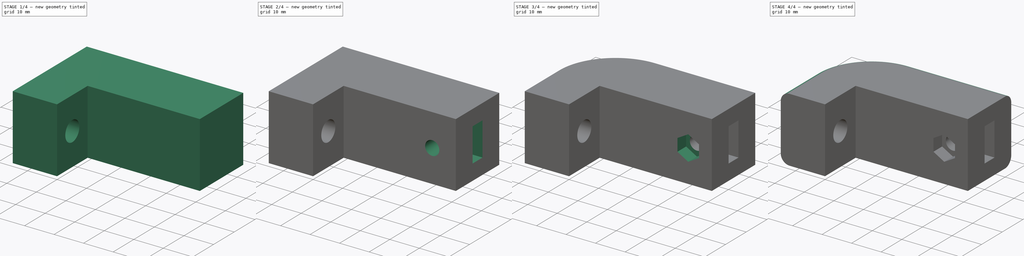
[diagram: build sequence overview — one tinted view per stage of 4, left to right]
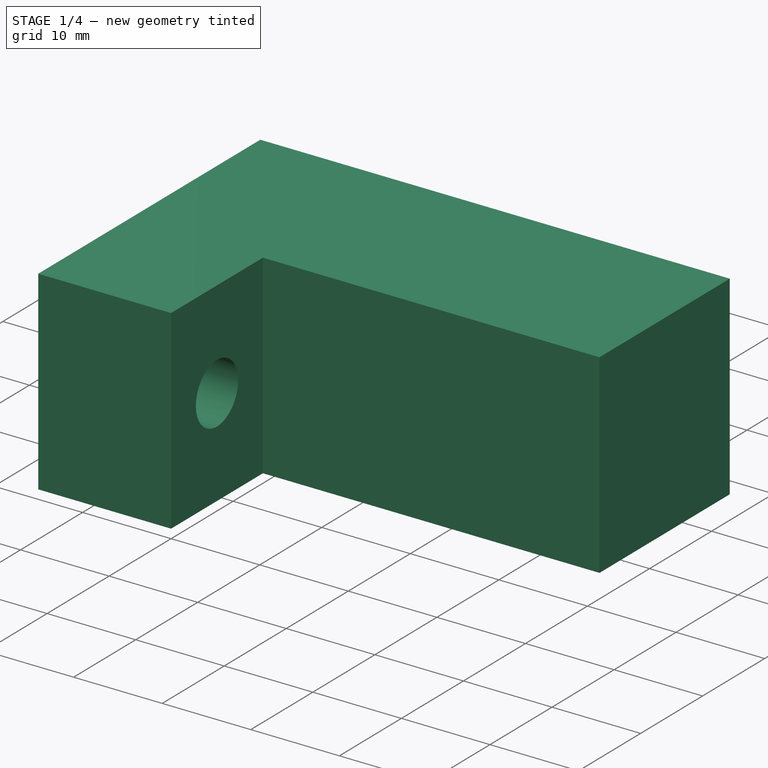
[diagram: stage 1 of 4 — iso view after this stage's code; geometry added in this stage tinted green]
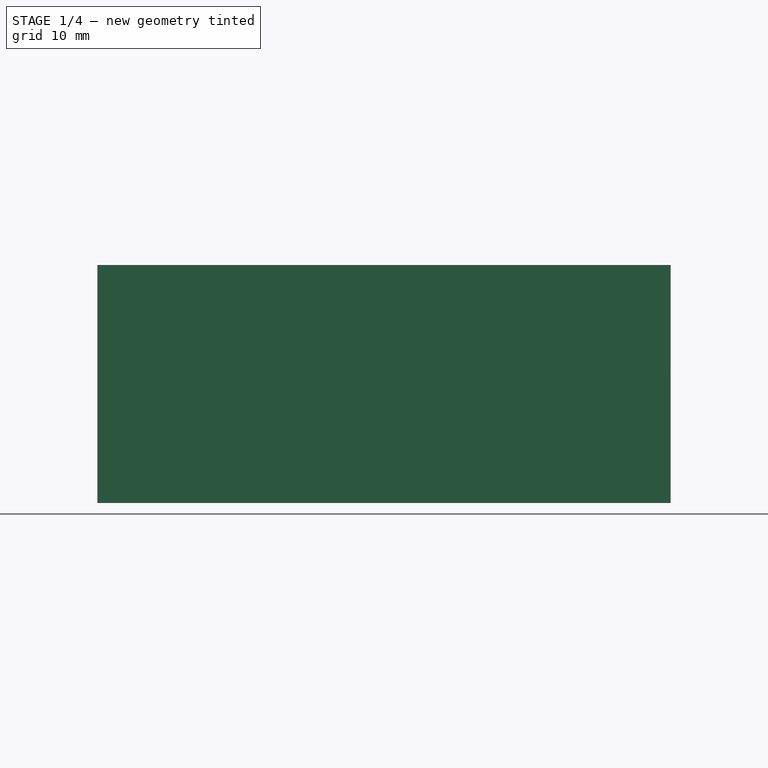
[diagram: stage 1 of 4 — front view after this stage's code; geometry added in this stage tinted green]
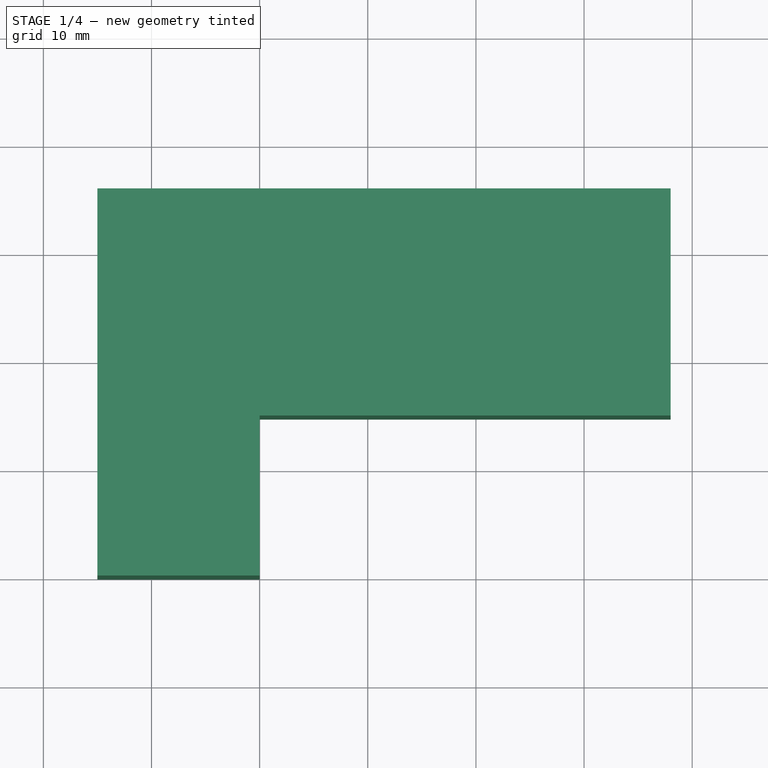
[diagram: stage 1 of 4 — top view after this stage's code; geometry added in this stage tinted green]
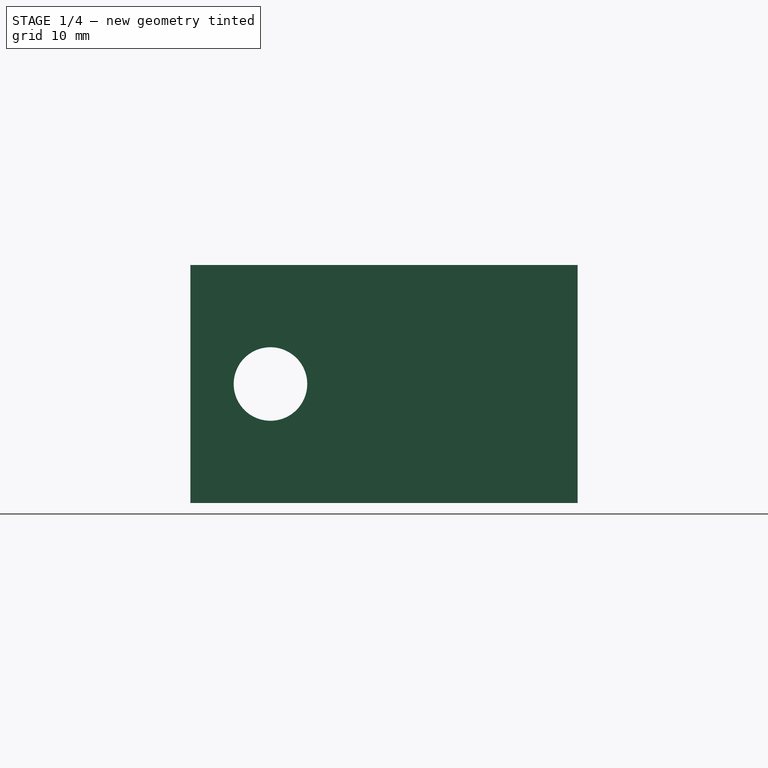
[diagram: stage 1 of 4 — right view after this stage's code; geometry added in this stage tinted green]
FCSTD DOCUMENT  (FreeCAD 1.0R39109 (Git))
Label: pulley_to_SH25
License: All rights reserved
LicenseURL: https://en.wikipedia.org/wiki/All_rights_reserved
objects: Sketcher::SketchObject×6, PartDesign::Pocket×5, PartDesign::Fillet×3, PartDesign::Pad×1, PartDesign::Body×1
note: 40 computed .brp shape members not serialized (recipe doc carries the construction recipe); baked Part::Feature solids carry a one-line shape summary decoded from their .brp

FEATURE [Sketcher::SketchObject] Sketch
  ArcFitTolerance = 1e-06
  AttachmentSupport = -> [XY_Plane]
  FullyConstrained = true
  MakeInternals = false
  MapMode = 5
  sketch-geometry (6):
    g0: LineSegment StartX=0 StartY=0 StartZ=0 EndX=0 EndY=14.8 EndZ=0
    g1: LineSegment StartX=0 StartY=14.8 StartZ=0 EndX=38 EndY=14.8 EndZ=0
    g2: LineSegment StartX=38 StartY=14.8 StartZ=0 EndX=38 EndY=35.8 EndZ=0
    g3: LineSegment StartX=38 StartY=35.8 StartZ=0 EndX=-15 EndY=35.8 EndZ=0
    g4: LineSegment StartX=-15 StartY=35.8 StartZ=0 EndX=-15 EndY=0 EndZ=0
    g5: LineSegment StartX=-15 StartY=0 StartZ=0 EndX=0 EndY=0 EndZ=0
  constraints (17):
    c: Coincident(g0,g-1)
    c: Vertical(g0)
    c: Coincident(g1,g0)
    c: Horizontal(g1)
    c: Coincident(g2,g1)
    c: Vertical(g2)
    c: Coincident(g3,g2)
    c: Horizontal(g3)
    c: Coincident(g4,g3)
    c: Vertical(g4)
    c: Coincident(g5,g4)
    c: Coincident(g5,g0)
    c: Horizontal(g5)
    c: DistanceY(g0,g0) = 14.8
    c: DistanceX(g1,g1) = 38
    c: DistanceY(g2,g2) = 21
    c: DistanceX(g5,g5) = 15
FEATURE [PartDesign::Pad] Pad
  Direction = (0,0,1)
  Length = 22
  Length2 = 10
  Profile = -> Sketch
  ReferenceAxis = -> Sketch [N_Axis]
  Refine = true
  Suppressed = false
  Type = 0
FEATURE [Sketcher::SketchObject] Sketch001
  ArcFitTolerance = 1e-06
  AttachmentSupport = -> [Pad]
  FullyConstrained = true
  MakeInternals = false
  MapMode = 5
  Placement = pos=(0,0,0) rot=(0.57735,0.57735,0.57735;2.0944rad)
  sketch-geometry (1):
    g0: Circle CenterX=7.4 CenterY=11 CenterZ=0 NormalX=0 NormalY=0 NormalZ=1 AngleXU=0 Radius=3.4
  constraints (3):
    c: DistanceY(g-1,g0) = 11
    c: DistanceX(g0) = 7.4
    c: Diameter(g0) = 6.8
FEATURE [PartDesign::Pocket] Pocket
  BaseFeature = -> Pad
  Direction = (-1,0,0)
  Length = 5
  Length2 = 5
  Profile = -> Sketch001
  ReferenceAxis = -> Sketch001 [N_Axis]
  Refine = true
  Suppressed = false
  Type = 1
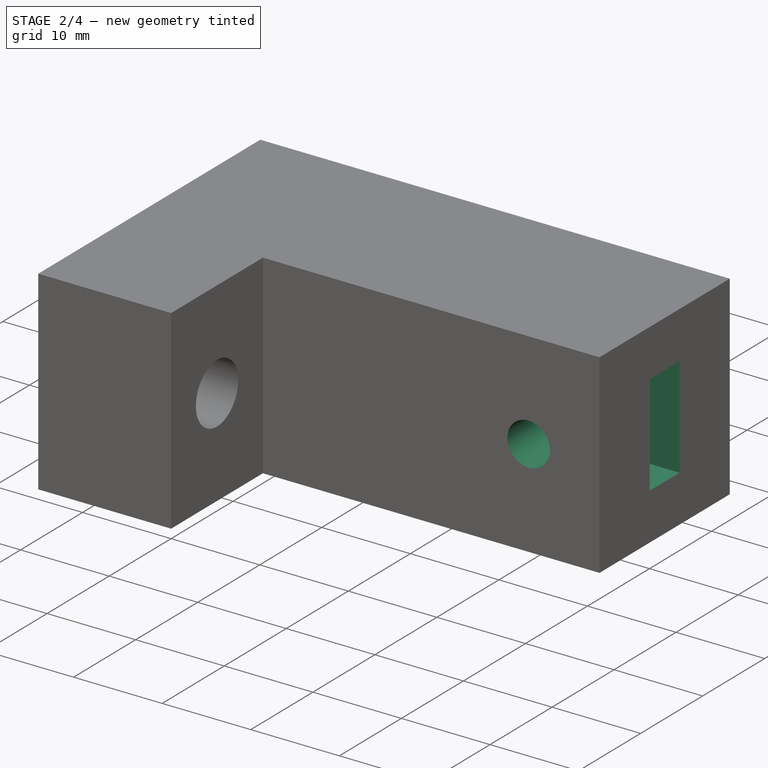
[diagram: stage 2 of 4 — iso view after this stage's code; geometry added in this stage tinted green]
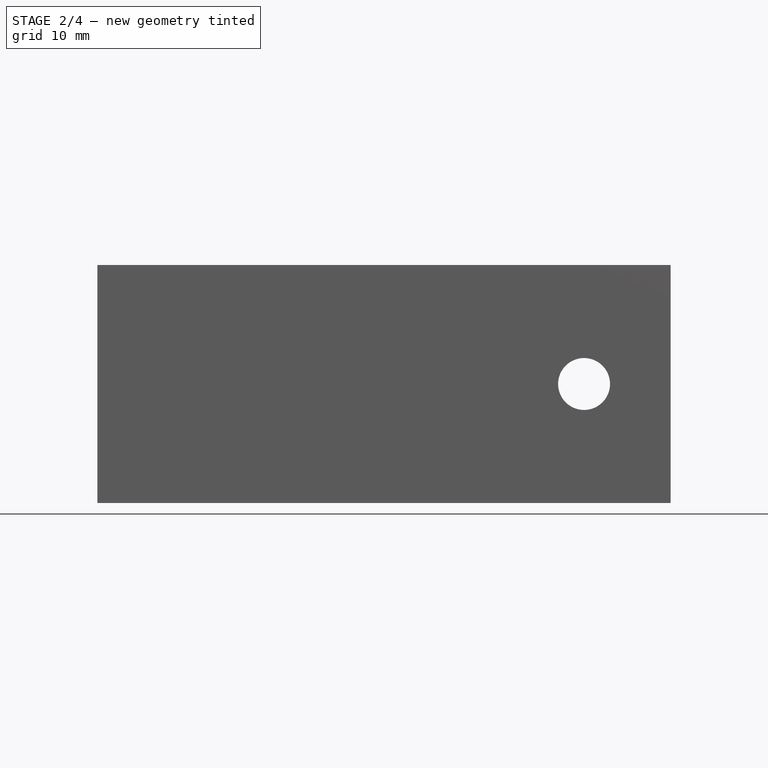
[diagram: stage 2 of 4 — front view after this stage's code; geometry added in this stage tinted green]
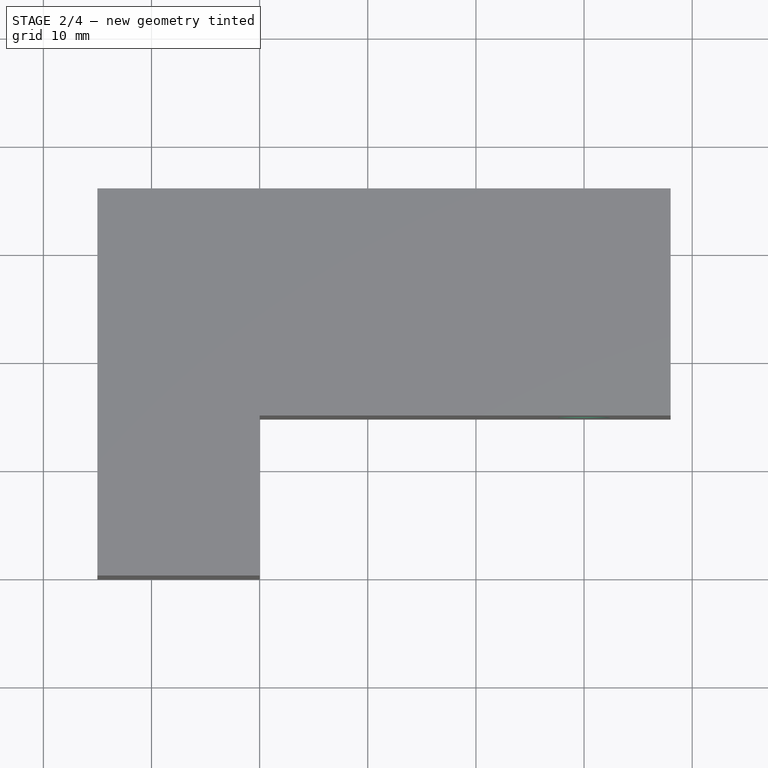
[diagram: stage 2 of 4 — top view after this stage's code; geometry added in this stage tinted green]
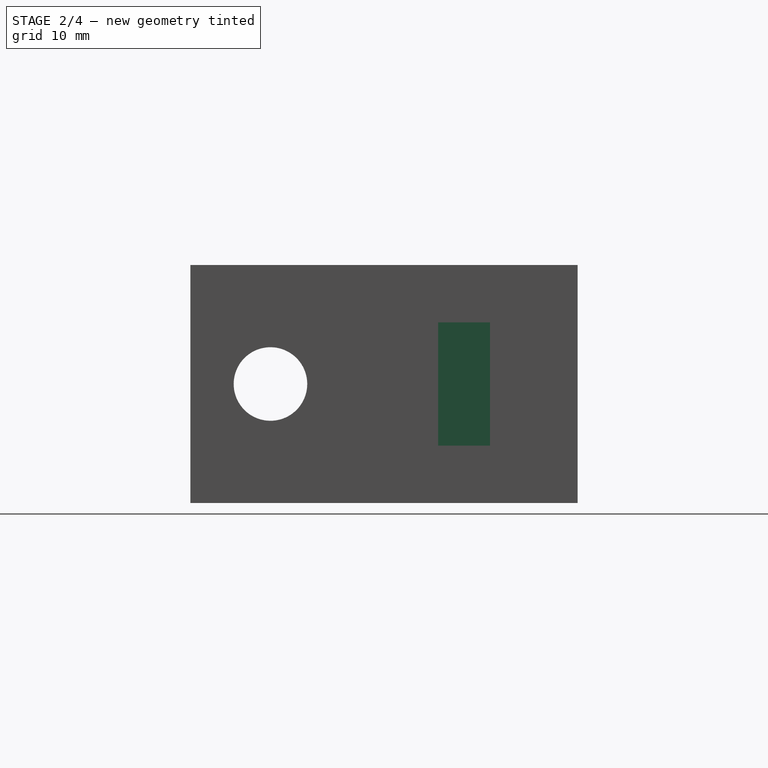
[diagram: stage 2 of 4 — right view after this stage's code; geometry added in this stage tinted green]
FEATURE [Sketcher::SketchObject] Sketch002
  ArcFitTolerance = 1e-06
  AttachmentSupport = -> [Pocket]
  FullyConstrained = true
  MakeInternals = false
  MapMode = 5
  Placement = pos=(38,0,0) rot=(0.57735,0.57735,0.57735;2.0944rad)
  sketch-geometry (12):
    g0: LineSegment StartX=22.9 StartY=16.7 StartZ=0 EndX=22.9 EndY=5.3 EndZ=0
    g1: LineSegment StartX=22.9 StartY=5.3 StartZ=0 EndX=27.7 EndY=5.3 EndZ=0
    g2: LineSegment StartX=27.7 StartY=5.3 StartZ=0 EndX=27.7 EndY=16.7 EndZ=0
    g3: LineSegment StartX=27.7 StartY=16.7 StartZ=0 EndX=22.9 EndY=16.7 EndZ=0
    g4: LineSegment [constr] StartX=22.9 StartY=16.7 StartZ=0 EndX=27.7 EndY=5.3 EndZ=0
    g5: LineSegment [constr] StartX=14.8 StartY=0 StartZ=0 EndX=35.8 EndY=0 EndZ=0
    g6: LineSegment [constr] StartX=35.8 StartY=0 StartZ=0 EndX=35.8 EndY=22 EndZ=0
    g7: LineSegment [constr] StartX=35.8 StartY=22 StartZ=0 EndX=14.8 EndY=22 EndZ=0
    g8: LineSegment [constr] StartX=14.8 StartY=22 StartZ=0 EndX=14.8 EndY=0 EndZ=0
    g9: LineSegment [constr] StartX=14.8 StartY=22 StartZ=0 EndX=35.8 EndY=0 EndZ=0
    g10: GeomPoint [constr] X=25.3 Y=11 Z=0
    g11: GeomPoint [constr] X=25.3 Y=11 Z=0
  constraints (29):
    c: Coincident(g0,g1)
    c: Coincident(g1,g2)
    c: Coincident(g2,g3)
    c: Coincident(g3,g0)
    c: Vertical(g0)
    c: Vertical(g2)
    c: Horizontal(g1)
    c: Horizontal(g3)
    c: Distance(g0,g2) = 4.8
    c: Distance(g1,g3) = 11.4
    c: Coincident(g4,g0)
    c: Coincident(g4,g1)
    c: Coincident(g5,g6)
    c: Coincident(g6,g7)
    c: Coincident(g7,g8)
    c: Coincident(g8,g5)
    c: Horizontal(g5)
    c: Horizontal(g7)
    c: Vertical(g6)
    c: Vertical(g8)
    c: Distance(g6,g8) = 21
    c: Distance(g5,g7) = 22
    c: PointOnObject(g5,g-1)
    c: DistanceX(g5) = 14.8
    c: Coincident(g9,g7)
    c: Coincident(g9,g5)
    c: Symmetric(g0,g2,g10)
    c: Symmetric(g5,g6,g11)
    c: Coincident(g10,g11)
FEATURE [PartDesign::Pocket] Pocket001
  BaseFeature = -> Pocket
  Direction = (-1,0,0)
  Length = 13.5
  Length2 = 5
  Profile = -> Sketch002
  ReferenceAxis = -> Sketch002 [N_Axis]
  Refine = true
  Suppressed = false
  Type = 0
FEATURE [Sketcher::SketchObject] Sketch003
  ArcFitTolerance = 1e-06
  AttachmentSupport = -> [Pocket001]
  FullyConstrained = true
  MakeInternals = false
  MapMode = 5
  Placement = pos=(0,35.8,0) rot=(0,0.707107,0.707107;3.14159rad)
  sketch-geometry (5):
    g0: Circle CenterX=-30 CenterY=11 CenterZ=0 NormalX=0 NormalY=0 NormalZ=1 AngleXU=0 Radius=2.4
    g1: LineSegment [constr] StartX=0 StartY=0 StartZ=0 EndX=0 EndY=22 EndZ=0
    g2: LineSegment [constr] StartX=0 StartY=22 StartZ=0 EndX=-38 EndY=22 EndZ=0
    g3: LineSegment [constr] StartX=-38 StartY=22 StartZ=0 EndX=-38 EndY=0 EndZ=0
    g4: LineSegment [constr] StartX=-38 StartY=0 StartZ=0 EndX=0 EndY=0 EndZ=0
  constraints (14):
    c: DistanceY(g0) = 11
    c: Coincident(g1,g2)
    c: Coincident(g2,g3)
    c: Coincident(g3,g4)
    c: Coincident(g4,g1)
    c: Vertical(g1)
    c: Vertical(g3)
    c: Horizontal(g2)
    c: Horizontal(g4)
    c: Distance(g1,g3) = 38
    c: Distance(g2,g4) = 22
    c: Coincident(g1,g-1)
    c: DistanceX(g2,g0) = 8
    c: Diameter(g0) = 4.8
FEATURE [PartDesign::Pocket] Pocket002
  BaseFeature = -> Pocket001
  Direction = (0,-1,2e-16)
  Length = 5
  Length2 = 5
  Profile = -> Sketch003
  ReferenceAxis = -> Sketch003 [N_Axis]
  Refine = true
  Suppressed = false
  Type = 1
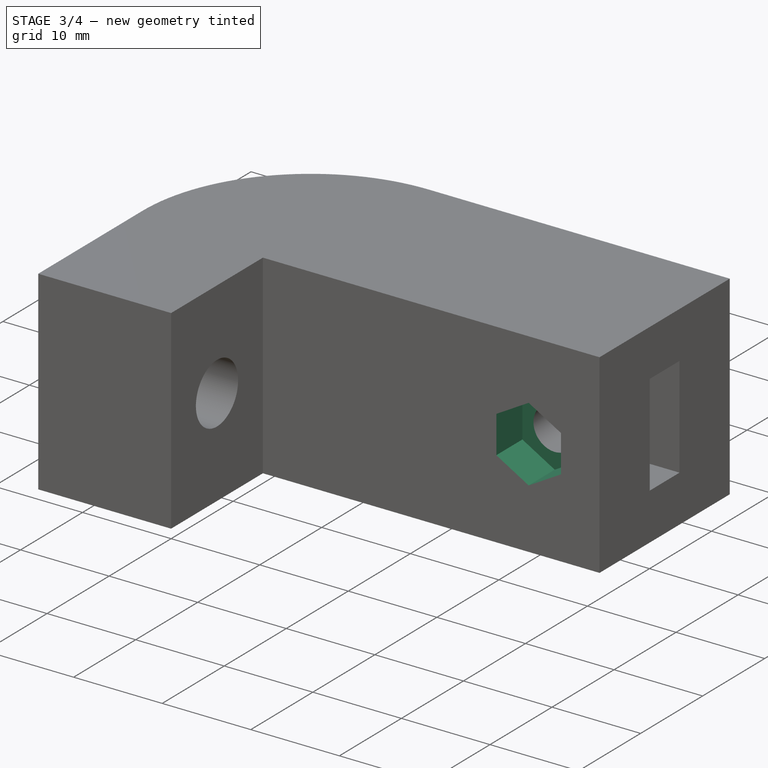
[diagram: stage 3 of 4 — iso view after this stage's code; geometry added in this stage tinted green]
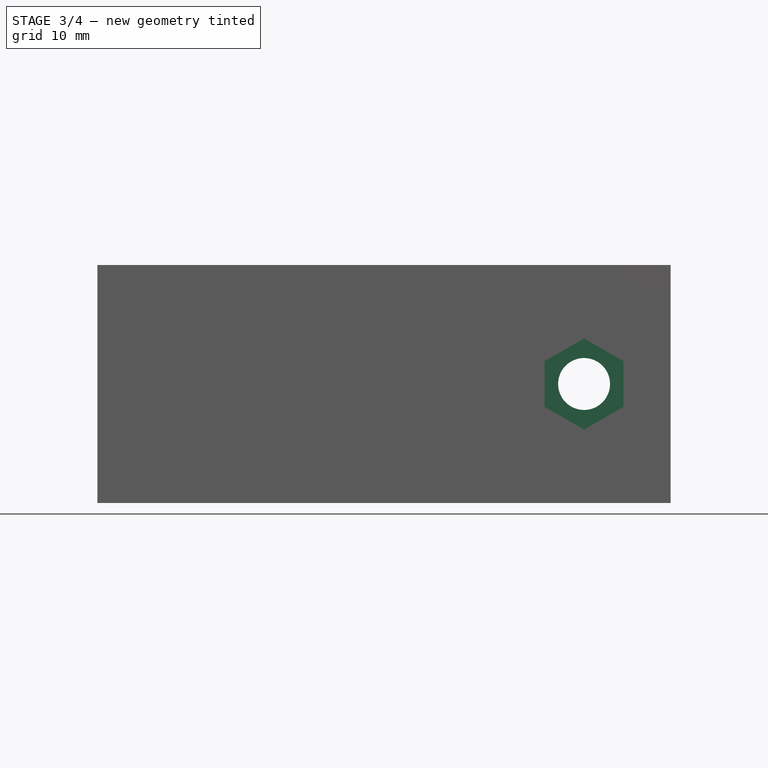
[diagram: stage 3 of 4 — front view after this stage's code; geometry added in this stage tinted green]
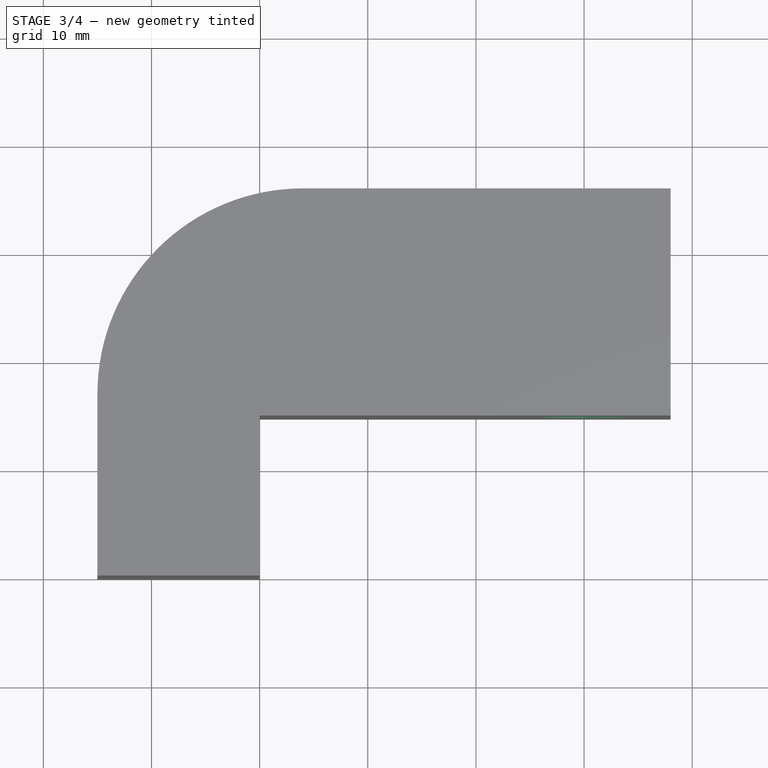
[diagram: stage 3 of 4 — top view after this stage's code; geometry added in this stage tinted green]
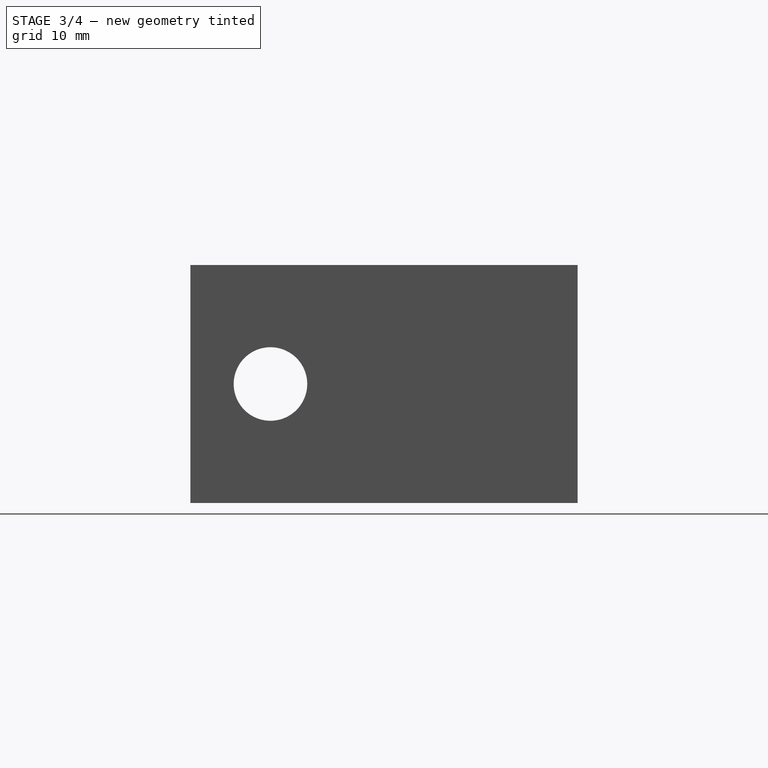
[diagram: stage 3 of 4 — right view after this stage's code; geometry added in this stage tinted green]
FEATURE [Sketcher::SketchObject] Sketch004
  ArcFitTolerance = 1e-06
  AttachmentSupport = -> [Pocket002]
  FullyConstrained = true
  MakeInternals = false
  MapMode = 5
  Placement = pos=(0,35.8,0) rot=(0,0.707107,0.707107;3.14159rad)
  expr: Constraints[0] = Sketch003.Constraints[0]
  expr: Constraints[10] = Sketch003.Constraints[10]
  expr: Constraints[12] = Sketch003.Constraints[12]
  expr: Constraints[13] = Sketch003.Constraints[13]
  expr: Constraints[9] = Sketch003.Constraints[9]
  sketch-geometry (6):
    g0: Circle [constr] CenterX=-30 CenterY=11 CenterZ=0 NormalX=0 NormalY=0 NormalZ=1 AngleXU=0 Radius=2.4
    g1: LineSegment [constr] StartX=0 StartY=0 StartZ=0 EndX=0 EndY=22 EndZ=0
    g2: LineSegment [constr] StartX=0 StartY=22 StartZ=0 EndX=-38 EndY=22 EndZ=0
    g3: LineSegment [constr] StartX=-38 StartY=22 StartZ=0 EndX=-38 EndY=0 EndZ=0
    g4: LineSegment [constr] StartX=-38 StartY=0 StartZ=0 EndX=0 EndY=0 EndZ=0
    g5: Circle CenterX=-30 CenterY=11 CenterZ=0 NormalX=0 NormalY=0 NormalZ=1 AngleXU=0 Radius=3.9
  constraints (16):
    c: DistanceY(g0) = 11
    c: Coincident(g1,g2)
    c: Coincident(g2,g3)
    c: Coincident(g3,g4)
    c: Coincident(g4,g1)
    c: Vertical(g1)
    c: Vertical(g3)
    c: Horizontal(g2)
    c: Horizontal(g4)
    c: Distance(g1,g3) = 38
    c: Distance(g2,g4) = 22
    c: Coincident(g1,g-1)
    c: DistanceX(g2,g0) = 8
    c: Diameter(g0) = 4.8
    c: Diameter(g5) = 7.8
    c: Coincident(g5,g0)
FEATURE [PartDesign::Pocket] Pocket003
  BaseFeature = -> Pocket002
  Direction = (0,-1,2e-16)
  Length = 4
  Length2 = 5
  Profile = -> Sketch004
  ReferenceAxis = -> Sketch004 [N_Axis]
  Refine = true
  Suppressed = false
  Type = 0
FEATURE [Sketcher::SketchObject] Sketch005
  ArcFitTolerance = 1e-06
  AttachmentSupport = -> [Pocket003]
  FullyConstrained = true
  MakeInternals = false
  MapMode = 5
  Placement = pos=(0,14.8,0) rot=(1,0,0;1.5708rad)
  sketch-geometry (11):
    g0: LineSegment StartX=30 StartY=6.78534 StartZ=0 EndX=33.65 EndY=8.89267 EndZ=0
    g1: LineSegment StartX=33.65 StartY=8.89267 StartZ=0 EndX=33.65 EndY=13.1073 EndZ=0
    g2: LineSegment StartX=33.65 StartY=13.1073 StartZ=0 EndX=30 EndY=15.2147 EndZ=0
    g3: LineSegment StartX=30 StartY=15.2147 StartZ=0 EndX=26.35 EndY=13.1073 EndZ=0
    g4: LineSegment StartX=26.35 StartY=13.1073 StartZ=0 EndX=26.35 EndY=8.89267 EndZ=0
    g5: LineSegment StartX=26.35 StartY=8.89267 StartZ=0 EndX=30 EndY=6.78534 EndZ=0
    g6: Circle [constr] CenterX=30 CenterY=11 CenterZ=0 NormalX=0 NormalY=0 NormalZ=1 AngleXU=0 Radius=4.21466
    g7: LineSegment [constr] StartX=0 StartY=0 StartZ=0 EndX=38 EndY=0 EndZ=0
    g8: LineSegment [constr] StartX=38 StartY=0 StartZ=0 EndX=38 EndY=22 EndZ=0
    g9: LineSegment [constr] StartX=38 StartY=22 StartZ=0 EndX=0 EndY=22 EndZ=0
    g10: LineSegment [constr] StartX=0 StartY=22 StartZ=0 EndX=0 EndY=0 EndZ=0
  constraints (28):
    c: Coincident(g0,g1)
    c: Coincident(g1,g2)
    c: Coincident(g2,g3)
    c: Coincident(g3,g4)
    c: Coincident(g4,g5)
    c: Coincident(g5,g0)
    c: Equal(g0, g1-g5) x5
    c: PointOnObject(g0,g6)
    c: PointOnObject(g1,g6)
    c: PointOnObject(g2,g6)
    c: PointOnObject(g3,g6)
    c: PointOnObject(g4,g6)
    c: PointOnObject(g5,g6)
    c: Coincident(g7,g8)
    c: Coincident(g8,g9)
    c: Coincident(g9,g10)
    c: Coincident(g10,g7)
    c: Horizontal(g7)
    c: Horizontal(g9)
    c: Vertical(g8)
    c: Vertical(g10)
    c: Distance(g8,g10) = 38
    c: Distance(g7,g9) = 22
    c: Coincident(g7,g-1)
    c: DistanceX(g6,g8) = 8
    c: DistanceY(g6) = 11
    c: Vertical(g1)
    c: DistanceX(g4,g0) = 7.3
FEATURE [PartDesign::Pocket] Pocket004
  BaseFeature = -> Pocket003
  Direction = (0,1,-2e-16)
  Length = 4.2
  Length2 = 5
  Profile = -> Sketch005
  ReferenceAxis = -> Sketch005 [N_Axis]
  Refine = true
  Suppressed = false
  Type = 0
FEATURE [PartDesign::Fillet] Fillet
  Base = -> Pocket004 [Edge26]
  BaseFeature = -> Pocket004
  Radius = 19
  Refine = true
  SupportTransform = false
  Suppressed = false
  UseAllEdges = false
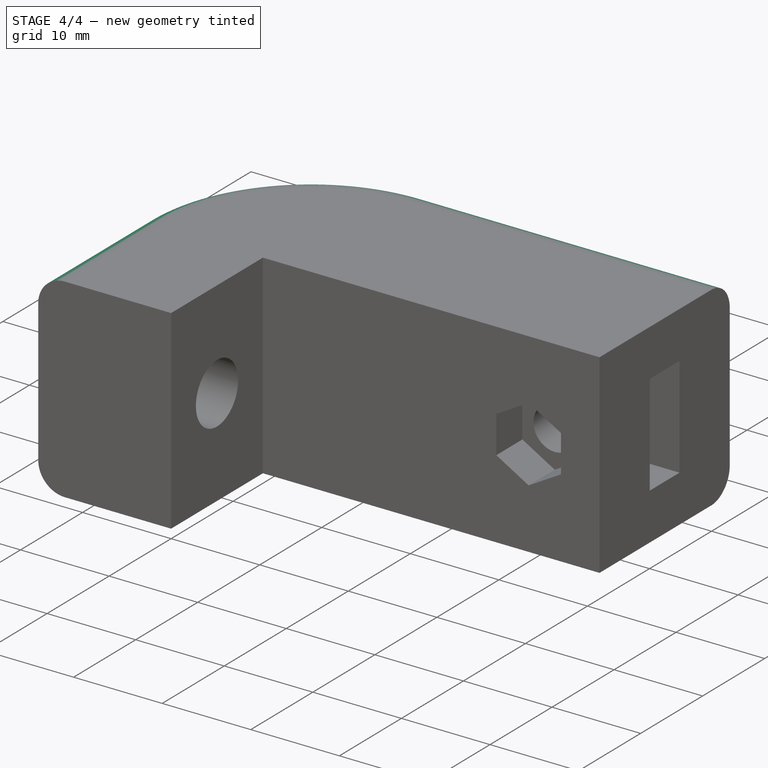
[diagram: stage 4 of 4 — iso view after this stage's code; geometry added in this stage tinted green]
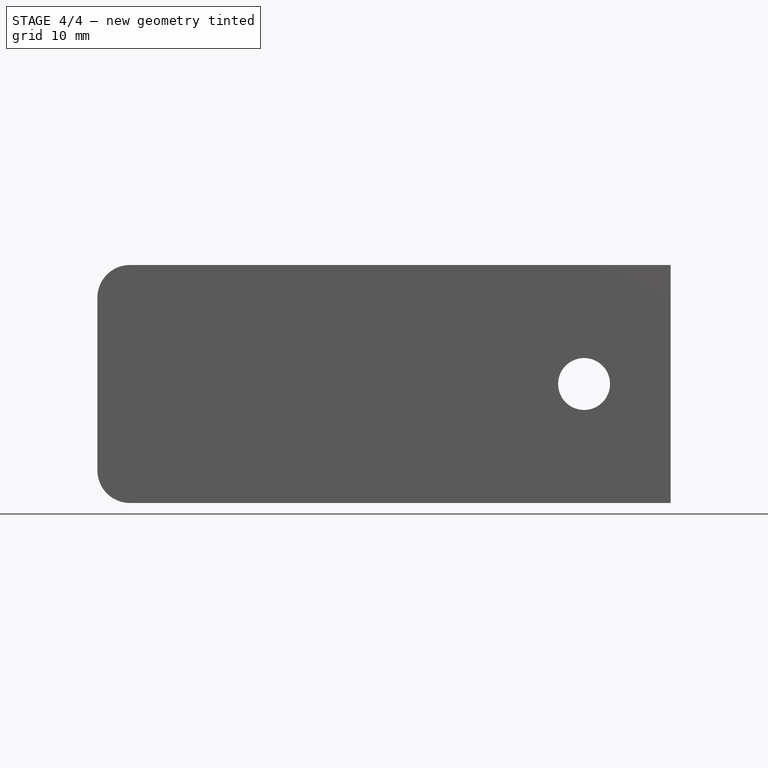
[diagram: stage 4 of 4 — front view after this stage's code; geometry added in this stage tinted green]
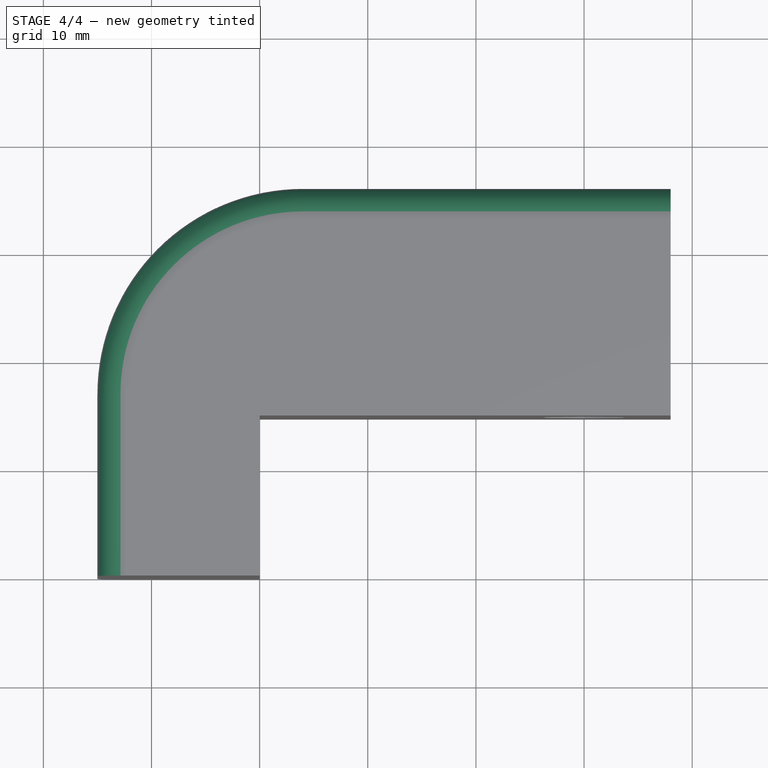
[diagram: stage 4 of 4 — top view after this stage's code; geometry added in this stage tinted green]
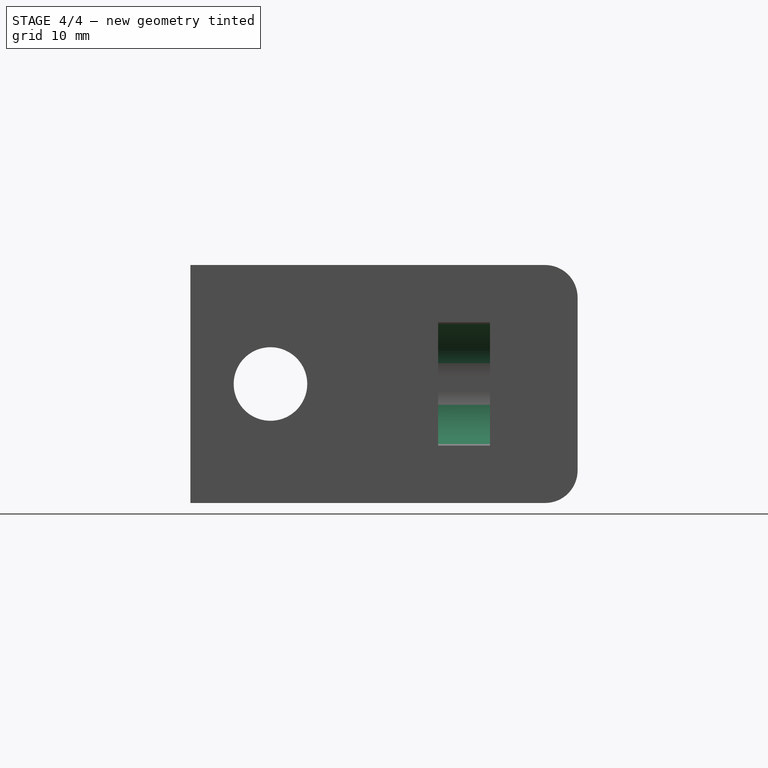
[diagram: stage 4 of 4 — right view after this stage's code; geometry added in this stage tinted green]
FEATURE [PartDesign::Fillet] Fillet001
  Base = -> Fillet [Edge21,Edge4]
  BaseFeature = -> Fillet
  Radius = 3
  Refine = true
  SupportTransform = false
  Suppressed = false
  UseAllEdges = false
FEATURE [PartDesign::Fillet] Fillet002
  Base = -> Fillet001 [Edge46,Edge51]
  BaseFeature = -> Fillet001
  Radius = 5
  Refine = true
  SupportTransform = false
  Suppressed = false
  UseAllEdges = false
FEATURE [PartDesign::Body] Body
  AllowCompound = false
  Group = -> [Sketch,Pad,Sketch001,Pocket,Sketch002,Pocket001,Sketch003,Pocket002,Sketch004,Pocket003,Sketch005,Pocket004,Fillet,Fillet001,Fillet002]
  Origin = -> Origin
  Tip = -> Fillet002
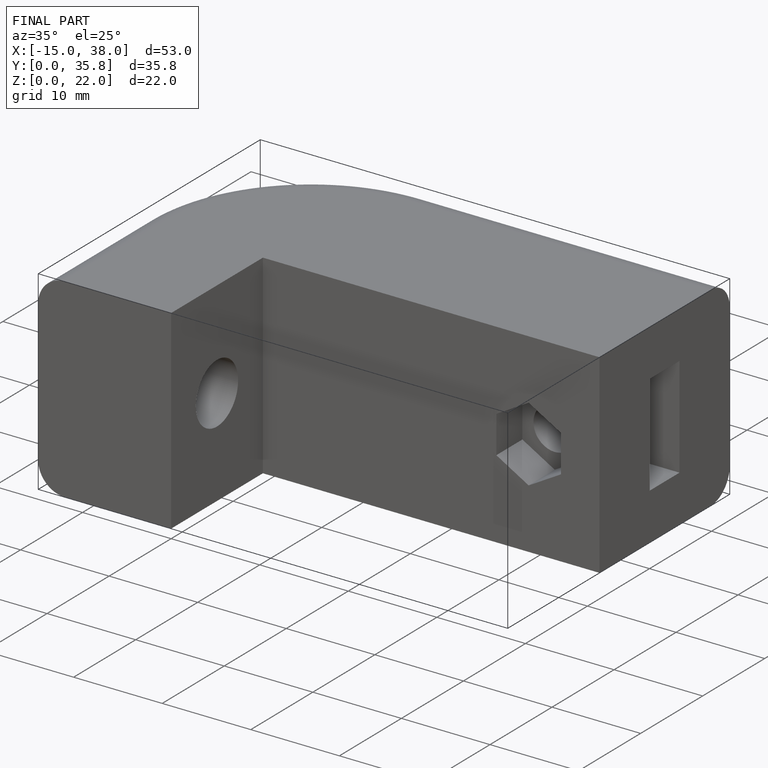
[diagram: finished part — iso view with bounding-box wireframe]
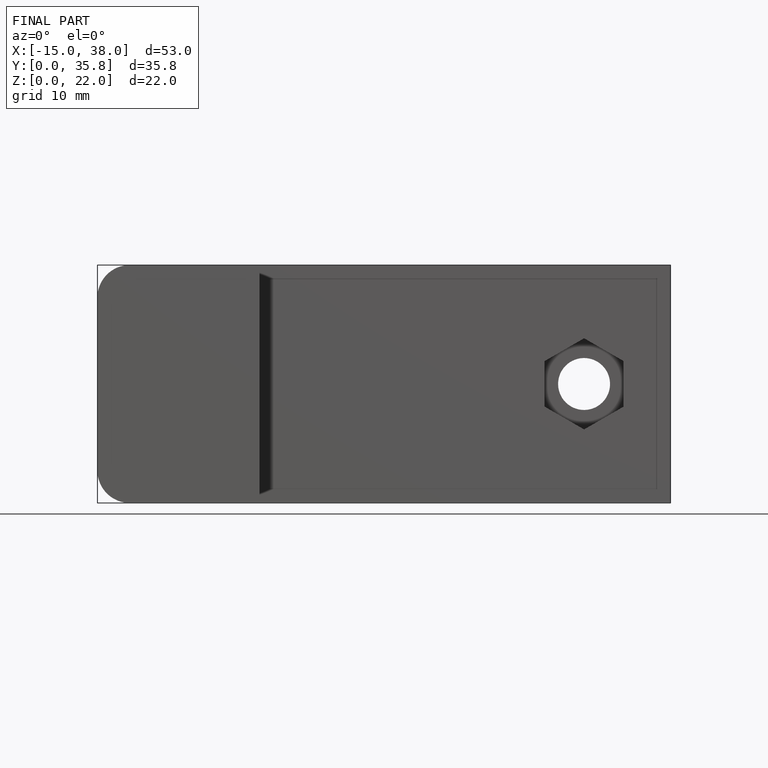
[diagram: finished part — front view with bounding-box wireframe]
